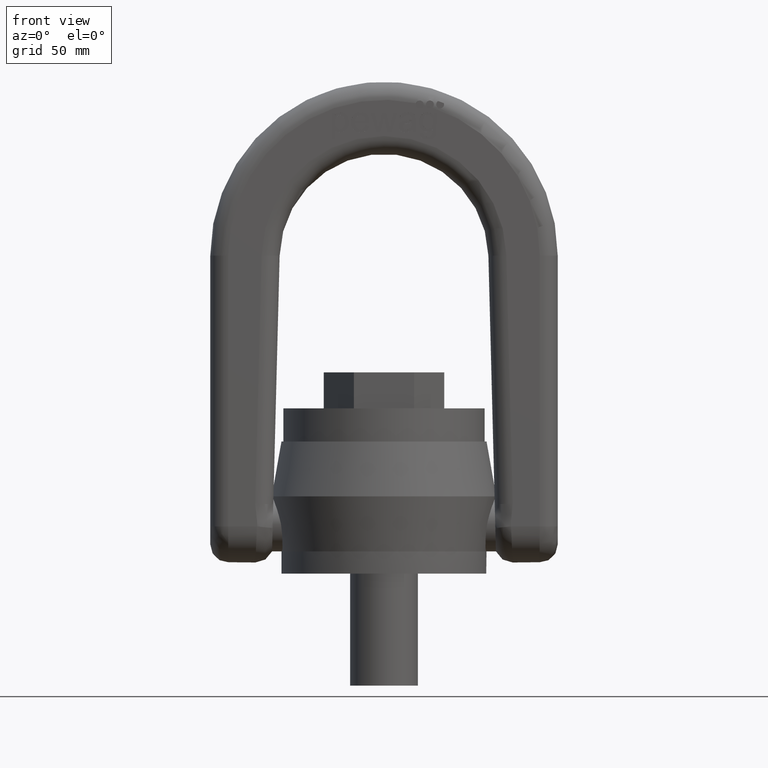
[diagram: clean part render]
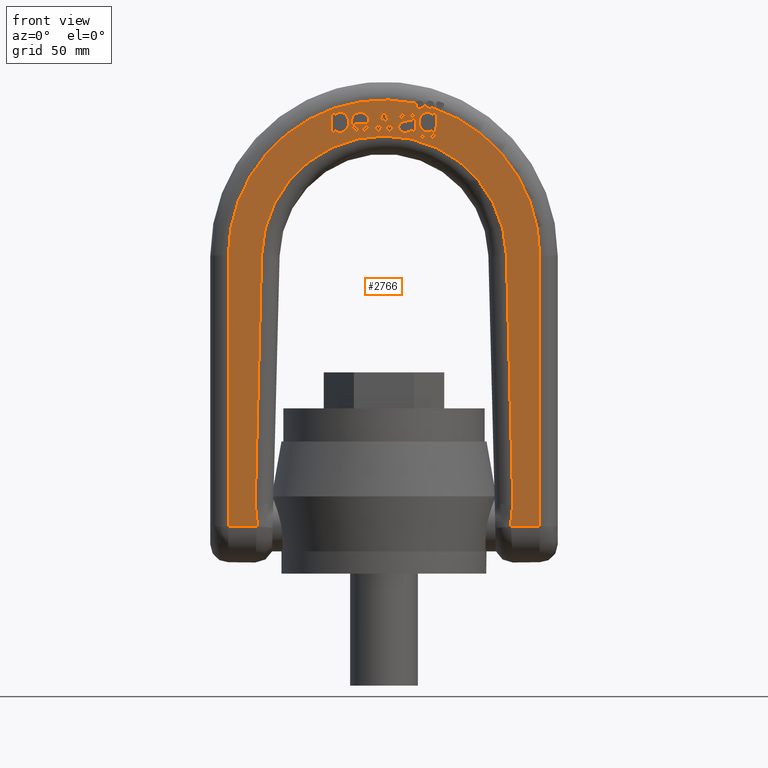
[diagram: same view with one face highlighted and labeled with its STEP entity id]
A machine part, front view. The second image highlights one B-rep face of the part: STEP entity #2766.
In plain terms, the highlighted planar face has unit normal (0, 1, 0).
Its self-contained STEP definition (entity closure, byte-faithful):
#321=B_SPLINE_CURVE_WITH_KNOTS('',3,(#6738,#6739,#6740,#6741),
 .UNSPECIFIED.,.F.,.F.,(4,4),(0.,1.),.UNSPECIFIED.);
#322=B_SPLINE_CURVE_WITH_KNOTS('',3,(#6746,#6747,#6748,#6749),
 .UNSPECIFIED.,.F.,.F.,(4,4),(0.,1.),.UNSPECIFIED.);
#323=B_SPLINE_CURVE_WITH_KNOTS('',3,(#6751,#6752,#6753,#6754,#6755,#6756,
#6757,#6758,#6759,#6760),.UNSPECIFIED.,.F.,.F.,(4,2,2,2,4),(0.,0.228358481914088,
0.466434346037289,0.703045305681468,1.),.UNSPECIFIED.);
#324=B_SPLINE_CURVE_WITH_KNOTS('',3,(#6762,#6763,#6764,#6765),
 .UNSPECIFIED.,.F.,.F.,(4,4),(0.,1.),.UNSPECIFIED.);
#325=B_SPLINE_CURVE_WITH_KNOTS('',3,(#6769,#6770,#6771,#6772),
 .UNSPECIFIED.,.F.,.F.,(4,4),(0.,1.),.UNSPECIFIED.);
#326=B_SPLINE_CURVE_WITH_KNOTS('',3,(#6774,#6775,#6776,#6777),
 .UNSPECIFIED.,.F.,.F.,(4,4),(0.,1.),.UNSPECIFIED.);
#327=B_SPLINE_CURVE_WITH_KNOTS('',3,(#6779,#6780,#6781,#6782),
 .UNSPECIFIED.,.F.,.F.,(4,4),(0.,1.),.UNSPECIFIED.);
#328=B_SPLINE_CURVE_WITH_KNOTS('',3,(#6784,#6785,#6786,#6787),
 .UNSPECIFIED.,.F.,.F.,(4,4),(0.,1.),.UNSPECIFIED.);
#329=B_SPLINE_CURVE_WITH_KNOTS('',3,(#6789,#6790,#6791,#6792,#6793,#6794),
 .UNSPECIFIED.,.F.,.F.,(4,2,4),(0.,0.559782608695653,1.),.UNSPECIFIED.);
#330=B_SPLINE_CURVE_WITH_KNOTS('',3,(#6796,#6797,#6798,#6799),
 .UNSPECIFIED.,.F.,.F.,(4,4),(0.,1.),.UNSPECIFIED.);
#331=B_SPLINE_CURVE_WITH_KNOTS('',3,(#6803,#6804,#6805,#6806),
 .UNSPECIFIED.,.F.,.F.,(4,4),(0.,1.),.UNSPECIFIED.);
#332=B_SPLINE_CURVE_WITH_KNOTS('',3,(#6808,#6809,#6810,#6811,#6812,#6813),
 .UNSPECIFIED.,.F.,.F.,(4,2,4),(0.,0.476123595505616,1.),.UNSPECIFIED.);
#333=B_SPLINE_CURVE_WITH_KNOTS('',3,(#6815,#6816,#6817,#6818),
 .UNSPECIFIED.,.F.,.F.,(4,4),(0.,1.),.UNSPECIFIED.);
#334=B_SPLINE_CURVE_WITH_KNOTS('',3,(#6820,#6821,#6822,#6823,#6824,#6825,
#6826,#6827),.UNSPECIFIED.,.F.,.F.,(4,2,2,4),(0.,0.472355769230783,0.73076923076924,
1.),.UNSPECIFIED.);
#335=B_SPLINE_CURVE_WITH_KNOTS('',3,(#6831,#6832,#6833,#6834),
 .UNSPECIFIED.,.F.,.F.,(4,4),(0.,1.),.UNSPECIFIED.);
#336=B_SPLINE_CURVE_WITH_KNOTS('',3,(#6836,#6837,#6838,#6839),
 .UNSPECIFIED.,.F.,.F.,(4,4),(0.,1.),.UNSPECIFIED.);
#337=B_SPLINE_CURVE_WITH_KNOTS('',3,(#6841,#6842,#6843,#6844,#6845,#6846,
#6847,#6848,#6849,#6850),.UNSPECIFIED.,.F.,.F.,(4,2,2,2,4),(0.,0.230139294836349,
0.49207415014351,0.75400900545067,1.),.UNSPECIFIED.);
#338=B_SPLINE_CURVE_WITH_KNOTS('',3,(#6863,#6864,#6865,#6866,#6867,#6868),
 .UNSPECIFIED.,.F.,.F.,(4,2,4),(0.,0.5,1.),.UNSPECIFIED.);
#339=B_SPLINE_CURVE_WITH_KNOTS('',3,(#6876,#6877,#6878,#6879,#6880,#6881),
 .UNSPECIFIED.,.F.,.F.,(4,2,4),(0.,0.5,1.),.UNSPECIFIED.);
#340=B_SPLINE_CURVE_WITH_KNOTS('',3,(#6898,#6899,#6900,#6901,#6902,#6903),
 .UNSPECIFIED.,.F.,.F.,(4,2,4),(0.,0.329498767460971,1.),.UNSPECIFIED.);
#341=B_SPLINE_CURVE_WITH_KNOTS('',3,(#6905,#6906,#6907,#6908,#6909,#6910,
#6911,#6912),.UNSPECIFIED.,.F.,.F.,(4,2,2,4),(0.,0.361028692437349,0.681441656975499,
1.),.UNSPECIFIED.);
#342=B_SPLINE_CURVE_WITH_KNOTS('',3,(#6914,#6915,#6916,#6917),
 .UNSPECIFIED.,.F.,.F.,(4,4),(0.,1.),.UNSPECIFIED.);
#343=B_SPLINE_CURVE_WITH_KNOTS('',3,(#6921,#6922,#6923,#6924),
 .UNSPECIFIED.,.F.,.F.,(4,4),(0.,1.),.UNSPECIFIED.);
#344=B_SPLINE_CURVE_WITH_KNOTS('',3,(#6926,#6927,#6928,#6929,#6930,#6931),
 .UNSPECIFIED.,.F.,.F.,(4,2,4),(0.,0.555803571428571,1.),.UNSPECIFIED.);
#345=B_SPLINE_CURVE_WITH_KNOTS('',3,(#6933,#6934,#6935,#6936,#6937,#6938),
 .UNSPECIFIED.,.F.,.F.,(4,2,4),(0.,0.500000000000013,1.),.UNSPECIFIED.);
#346=B_SPLINE_CURVE_WITH_KNOTS('',3,(#6940,#6941,#6942,#6943,#6944,#6945,
#6946,#6947,#6948,#6949,#6950,#6951,#6952,#6953),.UNSPECIFIED.,.F.,.F.,
(4,2,2,2,2,2,4),(0.,0.152201346045986,0.327187324733586,0.50217330342119,
0.676318003365108,0.850462703309026,1.),.UNSPECIFIED.);
#347=B_SPLINE_CURVE_WITH_KNOTS('',3,(#6958,#6959,#6960,#6961),
 .UNSPECIFIED.,.F.,.F.,(4,4),(0.,1.),.UNSPECIFIED.);
#348=B_SPLINE_CURVE_WITH_KNOTS('',3,(#6966,#6967,#6968,#6969),
 .UNSPECIFIED.,.F.,.F.,(4,4),(0.,1.),.UNSPECIFIED.);
#349=B_SPLINE_CURVE_WITH_KNOTS('',3,(#6971,#6972,#6973,#6974,#6975,#6976),
 .UNSPECIFIED.,.F.,.F.,(4,2,4),(0.,0.434679334916864,1.),.UNSPECIFIED.);
#350=B_SPLINE_CURVE_WITH_KNOTS('',3,(#6978,#6979,#6980,#6981),
 .UNSPECIFIED.,.F.,.F.,(4,4),(0.,1.),.UNSPECIFIED.);
#351=B_SPLINE_CURVE_WITH_KNOTS('',3,(#6985,#6986,#6987,#6988),
 .UNSPECIFIED.,.F.,.F.,(4,4),(0.,1.),.UNSPECIFIED.);
#352=B_SPLINE_CURVE_WITH_KNOTS('',3,(#6990,#6991,#6992,#6993,#6994,#6995),
 .UNSPECIFIED.,.F.,.F.,(4,2,4),(0.,0.570469798657718,1.),.UNSPECIFIED.);
#353=B_SPLINE_CURVE_WITH_KNOTS('',3,(#6997,#6998,#6999,#7000,#7001,#7002,
#7003,#7004,#7005,#7006,#7007,#7008),.UNSPECIFIED.,.F.,.F.,(4,2,2,2,2,4),
(0.,0.122570626594234,0.245141253188468,0.495637533752412,0.74613381431636,
1.),.UNSPECIFIED.);
#354=B_SPLINE_CURVE_WITH_KNOTS('',3,(#7018,#7019,#7020,#7021),
 .UNSPECIFIED.,.F.,.F.,(4,4),(0.,1.),.UNSPECIFIED.);
#355=B_SPLINE_CURVE_WITH_KNOTS('',3,(#7023,#7024,#7025,#7026),
 .UNSPECIFIED.,.F.,.F.,(4,4),(0.,1.),.UNSPECIFIED.);
#356=B_SPLINE_CURVE_WITH_KNOTS('',3,(#7048,#7049,#7050,#7051),
 .UNSPECIFIED.,.F.,.F.,(4,4),(0.,1.),.UNSPECIFIED.);
#1793=LINE('',#6698,#2075);
#1796=LINE('',#6734,#2078);
#1797=LINE('',#6744,#2079);
#1798=LINE('',#6767,#2080);
#1799=LINE('',#6801,#2081);
#1800=LINE('',#6828,#2082);
#1801=LINE('',#6852,#2083);
#1802=LINE('',#6854,#2084);
#1803=LINE('',#6856,#2085);
#1804=LINE('',#6858,#2086);
#1805=LINE('',#6860,#2087);
#1806=LINE('',#6862,#2088);
#1807=LINE('',#6870,#2089);
#1808=LINE('',#6874,#2090);
#1809=LINE('',#6882,#2091);
#1810=LINE('',#6894,#2092);
#1811=LINE('',#6895,#2093);
#1812=LINE('',#6919,#2094);
#1813=LINE('',#6955,#2095);
#1814=LINE('',#6957,#2096);
#1815=LINE('',#6964,#2097);
#1816=LINE('',#6983,#2098);
#1817=LINE('',#7009,#2099);
#1818=LINE('',#7012,#2100);
#1819=LINE('',#7014,#2101);
#1820=LINE('',#7016,#2102);
#1821=LINE('',#7028,#2103);
#1822=LINE('',#7030,#2104);
#1823=LINE('',#7032,#2105);
#1824=LINE('',#7034,#2106);
#1825=LINE('',#7036,#2107);
#1826=LINE('',#7038,#2108);
#1827=LINE('',#7040,#2109);
#1828=LINE('',#7042,#2110);
#1829=LINE('',#7044,#2111);
#1830=LINE('',#7046,#2112);
#1831=LINE('',#7053,#2113);
#1832=LINE('',#7055,#2114);
#2075=VECTOR('',#5912,1.);
#2078=VECTOR('',#5919,1.);
#2079=VECTOR('',#5924,1.);
#2080=VECTOR('',#5925,1.);
#2081=VECTOR('',#5926,1.);
#2082=VECTOR('',#5927,1.);
#2083=VECTOR('',#5928,1.);
#2084=VECTOR('',#5929,1.);
#2085=VECTOR('',#5930,1.);
#2086=VECTOR('',#5931,1.);
#2087=VECTOR('',#5932,1.);
#2088=VECTOR('',#5933,1.);
#2089=VECTOR('',#5934,1.);
#2090=VECTOR('',#5937,1.);
#2091=VECTOR('',#5938,1.);
#2092=VECTOR('',#5949,1.);
#2093=VECTOR('',#5950,1.);
#2094=VECTOR('',#5951,1.);
#2095=VECTOR('',#5952,1.);
#2096=VECTOR('',#5953,1.);
#2097=VECTOR('',#5954,1.);
#2098=VECTOR('',#5955,1.);
#2099=VECTOR('',#5956,1.);
#2100=VECTOR('',#5957,1.);
#2101=VECTOR('',#5958,1.);
#2102=VECTOR('',#5959,1.);
#2103=VECTOR('',#5960,1.);
#2104=VECTOR('',#5961,1.);
#2105=VECTOR('',#5962,1.);
#2106=VECTOR('',#5963,1.);
#2107=VECTOR('',#5964,1.);
#2108=VECTOR('',#5965,1.);
#2109=VECTOR('',#5966,1.);
#2110=VECTOR('',#5967,1.);
#2111=VECTOR('',#5968,1.);
#2112=VECTOR('',#5969,1.);
#2113=VECTOR('',#5970,1.);
#2114=VECTOR('',#5971,1.);
#2645=PLANE('',#5647);
#2766=ADVANCED_FACE('',(#3021,#3022,#3023,#3024,#3025,#3026),#2645,.F.);
#3021=FACE_BOUND('',#3097,.T.);
#3022=FACE_BOUND('',#3098,.T.);
#3023=FACE_BOUND('',#3099,.T.);
#3024=FACE_BOUND('',#3100,.T.);
#3025=FACE_BOUND('',#3101,.T.);
#3026=FACE_BOUND('',#3102,.T.);
#3097=EDGE_LOOP('',(#3433,#3434,#3435,#3436,#3437,#3438,#3439,#3440,#3441,
#3442,#3443,#3444,#3445,#3446,#3447,#3448,#3449));
#3098=EDGE_LOOP('',(#3450,#3451,#3452,#3453,#3454,#3455,#3456,#3457,#3458,
#3459));
#3099=EDGE_LOOP('',(#3460,#3461,#3462,#3463,#3464,#3465,#3466,#3467,#3468,
#3469,#3470,#3471,#3472,#3473));
#3100=EDGE_LOOP('',(#3474,#3475,#3476,#3477,#3478,#3479,#3480,#3481,#3482,
#3483,#3484));
#3101=EDGE_LOOP('',(#3485,#3486,#3487,#3488,#3489,#3490,#3491,#3492,#3493));
#3102=EDGE_LOOP('',(#3494,#3495,#3496,#3497,#3498,#3499,#3500,#3501,#3502,
#3503,#3504,#3505,#3506,#3507,#3508,#3509,#3510,#3511,#3512));
#3433=ORIENTED_EDGE('',*,*,#4997,.F.);
#3434=ORIENTED_EDGE('',*,*,#4998,.F.);
#3435=ORIENTED_EDGE('',*,*,#4999,.F.);
#3436=ORIENTED_EDGE('',*,*,#5000,.F.);
#3437=ORIENTED_EDGE('',*,*,#5001,.F.);
#3438=ORIENTED_EDGE('',*,*,#5002,.F.);
#3439=ORIENTED_EDGE('',*,*,#5003,.F.);
#3440=ORIENTED_EDGE('',*,*,#5004,.F.);
#3441=ORIENTED_EDGE('',*,*,#5005,.F.);
#3442=ORIENTED_EDGE('',*,*,#5006,.F.);
#3443=ORIENTED_EDGE('',*,*,#5007,.F.);
#3444=ORIENTED_EDGE('',*,*,#5008,.F.);
#3445=ORIENTED_EDGE('',*,*,#5009,.F.);
#3446=ORIENTED_EDGE('',*,*,#5010,.F.);
#3447=ORIENTED_EDGE('',*,*,#5011,.F.);
#3448=ORIENTED_EDGE('',*,*,#5012,.F.);
#3449=ORIENTED_EDGE('',*,*,#5013,.F.);
#3450=ORIENTED_EDGE('',*,*,#5014,.F.);
#3451=ORIENTED_EDGE('',*,*,#5015,.F.);
#3452=ORIENTED_EDGE('',*,*,#5016,.F.);
#3453=ORIENTED_EDGE('',*,*,#5017,.F.);
#3454=ORIENTED_EDGE('',*,*,#5018,.F.);
#3455=ORIENTED_EDGE('',*,*,#5019,.F.);
#3456=ORIENTED_EDGE('',*,*,#5020,.F.);
#3457=ORIENTED_EDGE('',*,*,#5021,.F.);
#3458=ORIENTED_EDGE('',*,*,#5022,.F.);
#3459=ORIENTED_EDGE('',*,*,#5023,.F.);
#3460=ORIENTED_EDGE('',*,*,#4995,.T.);
#3461=ORIENTED_EDGE('',*,*,#5024,.T.);
#3462=ORIENTED_EDGE('',*,*,#5025,.T.);
#3463=ORIENTED_EDGE('',*,*,#5026,.T.);
#3464=ORIENTED_EDGE('',*,*,#5027,.T.);
#3465=ORIENTED_EDGE('',*,*,#5028,.T.);
#3466=ORIENTED_EDGE('',*,*,#4989,.T.);
#3467=ORIENTED_EDGE('',*,*,#5029,.T.);
#3468=ORIENTED_EDGE('',*,*,#5030,.T.);
#3469=ORIENTED_EDGE('',*,*,#5031,.F.);
#3470=ORIENTED_EDGE('',*,*,#5032,.T.);
#3471=ORIENTED_EDGE('',*,*,#5033,.F.);
#3472=ORIENTED_EDGE('',*,*,#5034,.T.);
#3473=ORIENTED_EDGE('',*,*,#5035,.T.);
#3474=ORIENTED_EDGE('',*,*,#5036,.F.);
#3475=ORIENTED_EDGE('',*,*,#5037,.F.);
#3476=ORIENTED_EDGE('',*,*,#5038,.F.);
#3477=ORIENTED_EDGE('',*,*,#5039,.F.);
#3478=ORIENTED_EDGE('',*,*,#5040,.F.);
#3479=ORIENTED_EDGE('',*,*,#5041,.F.);
#3480=ORIENTED_EDGE('',*,*,#5042,.F.);
#3481=ORIENTED_EDGE('',*,*,#5043,.F.);
#3482=ORIENTED_EDGE('',*,*,#5044,.F.);
#3483=ORIENTED_EDGE('',*,*,#5045,.F.);
#3484=ORIENTED_EDGE('',*,*,#5046,.F.);
#3485=ORIENTED_EDGE('',*,*,#5047,.F.);
#3486=ORIENTED_EDGE('',*,*,#5048,.F.);
#3487=ORIENTED_EDGE('',*,*,#5049,.F.);
#3488=ORIENTED_EDGE('',*,*,#5050,.F.);
#3489=ORIENTED_EDGE('',*,*,#5051,.F.);
#3490=ORIENTED_EDGE('',*,*,#5052,.F.);
#3491=ORIENTED_EDGE('',*,*,#5053,.F.);
#3492=ORIENTED_EDGE('',*,*,#5054,.F.);
#3493=ORIENTED_EDGE('',*,*,#5055,.F.);
#3494=ORIENTED_EDGE('',*,*,#5056,.F.);
#3495=ORIENTED_EDGE('',*,*,#5057,.F.);
#3496=ORIENTED_EDGE('',*,*,#5058,.F.);
#3497=ORIENTED_EDGE('',*,*,#5059,.F.);
#3498=ORIENTED_EDGE('',*,*,#5060,.F.);
#3499=ORIENTED_EDGE('',*,*,#5061,.F.);
#3500=ORIENTED_EDGE('',*,*,#5062,.F.);
#3501=ORIENTED_EDGE('',*,*,#5063,.F.);
#3502=ORIENTED_EDGE('',*,*,#5064,.F.);
#3503=ORIENTED_EDGE('',*,*,#5065,.F.);
#3504=ORIENTED_EDGE('',*,*,#5066,.F.);
#3505=ORIENTED_EDGE('',*,*,#5067,.F.);
#3506=ORIENTED_EDGE('',*,*,#5068,.F.);
#3507=ORIENTED_EDGE('',*,*,#5069,.F.);
#3508=ORIENTED_EDGE('',*,*,#5070,.F.);
#3509=ORIENTED_EDGE('',*,*,#5071,.F.);
#3510=ORIENTED_EDGE('',*,*,#5072,.F.);
#3511=ORIENTED_EDGE('',*,*,#5073,.F.);
#3512=ORIENTED_EDGE('',*,*,#5074,.F.);
#4577=VERTEX_POINT('',#6699);
#4578=VERTEX_POINT('',#6700);
#4583=VERTEX_POINT('',#6733);
#4584=VERTEX_POINT('',#6735);
#4585=VERTEX_POINT('',#6742);
#4586=VERTEX_POINT('',#6743);
#4587=VERTEX_POINT('',#6745);
#4588=VERTEX_POINT('',#6750);
#4589=VERTEX_POINT('',#6761);
#4590=VERTEX_POINT('',#6766);
#4591=VERTEX_POINT('',#6768);
#4592=VERTEX_POINT('',#6773);
#4593=VERTEX_POINT('',#6778);
#4594=VERTEX_POINT('',#6783);
#4595=VERTEX_POINT('',#6788);
#4596=VERTEX_POINT('',#6795);
#4597=VERTEX_POINT('',#6800);
#4598=VERTEX_POINT('',#6802);
#4599=VERTEX_POINT('',#6807);
#4600=VERTEX_POINT('',#6814);
#4601=VERTEX_POINT('',#6819);
#4602=VERTEX_POINT('',#6829);
#4603=VERTEX_POINT('',#6830);
#4604=VERTEX_POINT('',#6835);
#4605=VERTEX_POINT('',#6840);
#4606=VERTEX_POINT('',#6851);
#4607=VERTEX_POINT('',#6853);
#4608=VERTEX_POINT('',#6855);
#4609=VERTEX_POINT('',#6857);
#4610=VERTEX_POINT('',#6859);
#4611=VERTEX_POINT('',#6861);
#4612=VERTEX_POINT('',#6869);
#4613=VERTEX_POINT('',#6871);
#4614=VERTEX_POINT('',#6873);
#4615=VERTEX_POINT('',#6875);
#4616=VERTEX_POINT('',#6883);
#4617=VERTEX_POINT('',#6885);
#4618=VERTEX_POINT('',#6887);
#4619=VERTEX_POINT('',#6889);
#4620=VERTEX_POINT('',#6891);
#4621=VERTEX_POINT('',#6893);
#4622=VERTEX_POINT('',#6896);
#4623=VERTEX_POINT('',#6897);
#4624=VERTEX_POINT('',#6904);
#4625=VERTEX_POINT('',#6913);
#4626=VERTEX_POINT('',#6918);
#4627=VERTEX_POINT('',#6920);
#4628=VERTEX_POINT('',#6925);
#4629=VERTEX_POINT('',#6932);
#4630=VERTEX_POINT('',#6939);
#4631=VERTEX_POINT('',#6954);
#4632=VERTEX_POINT('',#6956);
#4633=VERTEX_POINT('',#6962);
#4634=VERTEX_POINT('',#6963);
#4635=VERTEX_POINT('',#6965);
#4636=VERTEX_POINT('',#6970);
#4637=VERTEX_POINT('',#6977);
#4638=VERTEX_POINT('',#6982);
#4639=VERTEX_POINT('',#6984);
#4640=VERTEX_POINT('',#6989);
#4641=VERTEX_POINT('',#6996);
#4642=VERTEX_POINT('',#7010);
#4643=VERTEX_POINT('',#7011);
#4644=VERTEX_POINT('',#7013);
#4645=VERTEX_POINT('',#7015);
#4646=VERTEX_POINT('',#7017);
#4647=VERTEX_POINT('',#7022);
#4648=VERTEX_POINT('',#7027);
#4649=VERTEX_POINT('',#7029);
#4650=VERTEX_POINT('',#7031);
#4651=VERTEX_POINT('',#7033);
#4652=VERTEX_POINT('',#7035);
#4653=VERTEX_POINT('',#7037);
#4654=VERTEX_POINT('',#7039);
#4655=VERTEX_POINT('',#7041);
#4656=VERTEX_POINT('',#7043);
#4657=VERTEX_POINT('',#7045);
#4658=VERTEX_POINT('',#7047);
#4659=VERTEX_POINT('',#7052);
#4660=VERTEX_POINT('',#7054);
#4989=EDGE_CURVE('',#4577,#4578,#1793,.T.);
#4995=EDGE_CURVE('',#4584,#4583,#1796,.T.);
#4997=EDGE_CURVE('',#4585,#4586,#321,.T.);
#4998=EDGE_CURVE('',#4587,#4585,#1797,.T.);
#4999=EDGE_CURVE('',#4588,#4587,#322,.T.);
#5000=EDGE_CURVE('',#4589,#4588,#323,.T.);
#5001=EDGE_CURVE('',#4590,#4589,#324,.T.);
#5002=EDGE_CURVE('',#4591,#4590,#1798,.T.);
#5003=EDGE_CURVE('',#4592,#4591,#325,.T.);
#5004=EDGE_CURVE('',#4593,#4592,#326,.T.);
#5005=EDGE_CURVE('',#4594,#4593,#327,.T.);
#5006=EDGE_CURVE('',#4595,#4594,#328,.T.);
#5007=EDGE_CURVE('',#4596,#4595,#329,.T.);
#5008=EDGE_CURVE('',#4597,#4596,#330,.T.);
#5009=EDGE_CURVE('',#4598,#4597,#1799,.T.);
#5010=EDGE_CURVE('',#4599,#4598,#331,.T.);
#5011=EDGE_CURVE('',#4600,#4599,#332,.T.);
#5012=EDGE_CURVE('',#4601,#4600,#333,.T.);
#5013=EDGE_CURVE('',#4586,#4601,#334,.T.);
#5014=EDGE_CURVE('',#4602,#4603,#1800,.T.);
#5015=EDGE_CURVE('',#4604,#4602,#335,.T.);
#5016=EDGE_CURVE('',#4605,#4604,#336,.T.);
#5017=EDGE_CURVE('',#4606,#4605,#337,.T.);
#5018=EDGE_CURVE('',#4607,#4606,#1801,.T.);
#5019=EDGE_CURVE('',#4608,#4607,#1802,.T.);
#5020=EDGE_CURVE('',#4609,#4608,#1803,.T.);
#5021=EDGE_CURVE('',#4610,#4609,#1804,.T.);
#5022=EDGE_CURVE('',#4611,#4610,#1805,.T.);
#5023=EDGE_CURVE('',#4603,#4611,#1806,.T.);
#5024=EDGE_CURVE('',#4583,#4612,#338,.T.);
#5025=EDGE_CURVE('',#4612,#4613,#1807,.T.);
#5026=EDGE_CURVE('',#4613,#4614,#5559,.T.);
#5027=EDGE_CURVE('',#4614,#4615,#1808,.T.);
#5028=EDGE_CURVE('',#4615,#4577,#339,.T.);
#5029=EDGE_CURVE('',#4578,#4616,#1809,.T.);
#5030=EDGE_CURVE('',#4616,#4617,#5560,.T.);
#5031=EDGE_CURVE('',#4618,#4617,#5561,.T.);
#5032=EDGE_CURVE('',#4618,#4619,#5562,.T.);
#5033=EDGE_CURVE('',#4620,#4619,#5563,.T.);
#5034=EDGE_CURVE('',#4620,#4621,#5564,.T.);
#5035=EDGE_CURVE('',#4621,#4584,#1810,.T.);
#5036=EDGE_CURVE('',#4622,#4623,#1811,.T.);
#5037=EDGE_CURVE('',#4624,#4622,#340,.T.);
#5038=EDGE_CURVE('',#4625,#4624,#341,.T.);
#5039=EDGE_CURVE('',#4626,#4625,#342,.T.);
#5040=EDGE_CURVE('',#4627,#4626,#1812,.T.);
#5041=EDGE_CURVE('',#4628,#4627,#343,.T.);
#5042=EDGE_CURVE('',#4629,#4628,#344,.T.);
#5043=EDGE_CURVE('',#4630,#4629,#345,.T.);
#5044=EDGE_CURVE('',#4631,#4630,#346,.T.);
#5045=EDGE_CURVE('',#4632,#4631,#1813,.T.);
#5046=EDGE_CURVE('',#4623,#4632,#1814,.T.);
#5047=EDGE_CURVE('',#4633,#4634,#347,.T.);
#5048=EDGE_CURVE('',#4635,#4633,#1815,.T.);
#5049=EDGE_CURVE('',#4636,#4635,#348,.T.);
#5050=EDGE_CURVE('',#4637,#4636,#349,.T.);
#5051=EDGE_CURVE('',#4638,#4637,#350,.T.);
#5052=EDGE_CURVE('',#4639,#4638,#1816,.T.);
#5053=EDGE_CURVE('',#4640,#4639,#351,.T.);
#5054=EDGE_CURVE('',#4641,#4640,#352,.T.);
#5055=EDGE_CURVE('',#4634,#4641,#353,.T.);
#5056=EDGE_CURVE('',#4642,#4643,#1817,.T.);
#5057=EDGE_CURVE('',#4644,#4642,#1818,.T.);
#5058=EDGE_CURVE('',#4645,#4644,#1819,.T.);
#5059=EDGE_CURVE('',#4646,#4645,#1820,.T.);
#5060=EDGE_CURVE('',#4647,#4646,#354,.T.);
#5061=EDGE_CURVE('',#4648,#4647,#355,.T.);
#5062=EDGE_CURVE('',#4649,#4648,#1821,.T.);
#5063=EDGE_CURVE('',#4650,#4649,#1822,.T.);
#5064=EDGE_CURVE('',#4651,#4650,#1823,.T.);
#5065=EDGE_CURVE('',#4652,#4651,#1824,.T.);
#5066=EDGE_CURVE('',#4653,#4652,#1825,.T.);
#5067=EDGE_CURVE('',#4654,#4653,#1826,.T.);
#5068=EDGE_CURVE('',#4655,#4654,#1827,.T.);
#5069=EDGE_CURVE('',#4656,#4655,#1828,.T.);
#5070=EDGE_CURVE('',#4657,#4656,#1829,.T.);
#5071=EDGE_CURVE('',#4658,#4657,#1830,.T.);
#5072=EDGE_CURVE('',#4659,#4658,#356,.T.);
#5073=EDGE_CURVE('',#4660,#4659,#1831,.T.);
#5074=EDGE_CURVE('',#4643,#4660,#1832,.T.);
#5559=CIRCLE('',#5641,64.5);
#5560=CIRCLE('',#5642,82.);
#5561=CIRCLE('',#5643,2.0625);
#5562=CIRCLE('',#5644,82.);
#5563=CIRCLE('',#5645,2.0625);
#5564=CIRCLE('',#5646,82.);
#5641=AXIS2_PLACEMENT_3D('',#6872,#5935,#5936);
#5642=AXIS2_PLACEMENT_3D('',#6884,#5939,#5940);
#5643=AXIS2_PLACEMENT_3D('',#6886,#5941,#5942);
#5644=AXIS2_PLACEMENT_3D('',#6888,#5943,#5944);
#5645=AXIS2_PLACEMENT_3D('',#6890,#5945,#5946);
#5646=AXIS2_PLACEMENT_3D('',#6892,#5947,#5948);
#5647=AXIS2_PLACEMENT_3D('',#7056,#5972,#5973);
#5912=DIRECTION('',(1.,0.,-1.3717323703112E-15));
#5919=DIRECTION('',(1.,0.,-1.06168868475083E-15));
#5924=DIRECTION('',(1.,0.,0.));
#5925=DIRECTION('',(-0.989370262977938,0.,-0.14541830261341));
#5926=DIRECTION('',(0.991928985003783,0.,-0.126794671454938));
#5927=DIRECTION('',(-1.,0.,0.));
#5928=DIRECTION('',(1.,0.,0.));
#5929=DIRECTION('',(0.,0.,1.));
#5930=DIRECTION('',(1.,0.,0.));
#5931=DIRECTION('',(0.,0.,-1.));
#5932=DIRECTION('',(-1.,0.,0.));
#5933=DIRECTION('',(0.,0.,1.));
#5934=DIRECTION('',(0.0255100308212767,0.,0.999674566210173));
#5935=DIRECTION('',(0.,1.,0.));
#5936=DIRECTION('',(0.,0.,1.));
#5937=DIRECTION('',(0.0255100308212767,0.,-0.999674566210173));
#5938=DIRECTION('',(-4.29254185209232E-16,0.,1.));
#5939=DIRECTION('',(0.,-1.,0.));
#5940=DIRECTION('',(0.,0.,1.));
#5941=DIRECTION('',(0.,-1.,0.));
#5942=DIRECTION('',(0.,0.,0.999999999999997));
#5943=DIRECTION('',(0.,-1.,0.));
#5944=DIRECTION('',(0.,0.,1.));
#5945=DIRECTION('',(0.,-1.,0.));
#5946=DIRECTION('',(0.,0.,0.999999999999997));
#5947=DIRECTION('',(0.,-1.,0.));
#5948=DIRECTION('',(0.,0.,1.));
#5949=DIRECTION('',(-4.29254185209232E-16,0.,-1.));
#5950=DIRECTION('',(-1.,0.,0.));
#5951=DIRECTION('',(-0.988666662925712,0.,0.150127377980621));
#5952=DIRECTION('',(-1.,0.,0.));
#5953=DIRECTION('',(0.,0.,-1.));
#5954=DIRECTION('',(1.,0.,0.));
#5955=DIRECTION('',(-0.992687288142561,0.,0.12071432375724));
#5956=DIRECTION('',(-1.,0.,0.));
#5957=DIRECTION('',(0.304245570453574,0.,0.952593634693923));
#5958=DIRECTION('',(1.,0.,0.));
#5959=DIRECTION('',(0.259135455314436,0.,-0.965840988879112));
#5960=DIRECTION('',(1.,0.,0.));
#5961=DIRECTION('',(0.254367653151694,0.,0.967107593305988));
#5962=DIRECTION('',(1.,0.,0.));
#5963=DIRECTION('',(0.298320908470944,0.,-0.954465628280595));
#5964=DIRECTION('',(-1.,0.,0.));
#5965=DIRECTION('',(-0.269463722620019,0.,0.963010541059526));
#5966=DIRECTION('',(-0.247736970080356,0.,-0.968827329122896));
#5967=DIRECTION('',(-0.266059563516177,0.,-0.96395659065208));
#5968=DIRECTION('',(-1.,0.,0.));
#5969=DIRECTION('',(-0.253070161005812,0.,0.96744792811215));
#5970=DIRECTION('',(-1.,0.,0.));
#5971=DIRECTION('',(-0.287282618696351,0.,-0.957845862858408));
#5972=DIRECTION('',(0.,1.,0.));
#5973=DIRECTION('',(0.,0.,1.));
#6698=CARTESIAN_POINT('',(-1.93620024069426E-13,-19.,24.85));
#6699=CARTESIAN_POINT('',(66.9010799481762,-19.,24.8499999999999));
#6700=CARTESIAN_POINT('',(82.,-19.,24.8499999999999));
#6733=CARTESIAN_POINT('',(-66.9010799481761,-19.,24.8500000000001));
#6734=CARTESIAN_POINT('',(-1.4985735785258E-13,-19.,24.85));
#6735=CARTESIAN_POINT('',(-82.,-19.,24.8500000000001));
#6738=CARTESIAN_POINT('',(17.1170365068003,-19.,232.666666666667));
#6739=CARTESIAN_POINT('',(16.8557623478884,-19.,233.116909695574));
#6740=CARTESIAN_POINT('',(16.6982820329277,-19.,233.577705295472));
#6741=CARTESIAN_POINT('',(16.6445955619184,-19.,234.04905346636));
#6742=CARTESIAN_POINT('',(17.1170365068003,-19.,232.666666666667));
#6743=CARTESIAN_POINT('',(16.6445955619184,-19.,234.04905346636));
#6744=CARTESIAN_POINT('',(0.,-19.,232.666666666667));
#6745=CARTESIAN_POINT('',(15.3131710808876,-19.,232.666666666667));
#6746=CARTESIAN_POINT('',(14.9588403722262,-19.,233.894282425173));
#6747=CARTESIAN_POINT('',(15.0268432355047,-19.,233.387759017652));
#6748=CARTESIAN_POINT('',(15.1449534717252,-19.,232.979726272704));
#6749=CARTESIAN_POINT('',(15.3131710808876,-19.,232.666666666667));
#6750=CARTESIAN_POINT('',(14.9588403722262,-19.,233.894282425173));
#6751=CARTESIAN_POINT('',(8.66320687186832,-19.,237.341455615247));
#6752=CARTESIAN_POINT('',(8.06907659269866,-19.,236.806792018419));
#6753=CARTESIAN_POINT('',(7.77201145311384,-19.,236.127909951394));
#6754=CARTESIAN_POINT('',(7.77201145311384,-19.,234.439498592991));
#6755=CARTESIAN_POINT('',(8.07981388690053,-19.,233.746546431312));
#6756=CARTESIAN_POINT('',(9.31437191763629,-19.,232.694535883271));
#6757=CARTESIAN_POINT('',(10.1592698639943,-19.,232.430992581223));
#6758=CARTESIAN_POINT('',(12.5644237652112,-19.,232.430992581223));
#6759=CARTESIAN_POINT('',(13.8063707945598,-19.,232.919928370427));
#6760=CARTESIAN_POINT('',(14.9588403722262,-19.,233.894282425173));
#6761=CARTESIAN_POINT('',(8.66320687186832,-19.,237.341455615247));
#6762=CARTESIAN_POINT('',(11.7627057981389,-19.,238.407265285239));
#6763=CARTESIAN_POINT('',(10.2916964924839,-19.,238.231389102072));
#6764=CARTESIAN_POINT('',(9.26091624910525,-19.,237.876119212075));
#6765=CARTESIAN_POINT('',(8.66320687186832,-19.,237.341455615247));
#6766=CARTESIAN_POINT('',(11.7627057981389,-19.,238.407265285239));
#6767=CARTESIAN_POINT('',(-10.1686776272023,-19.,235.183775888987));
#6768=CARTESIAN_POINT('',(13.3661417322835,-19.,238.642939370683));
#6769=CARTESIAN_POINT('',(14.844309234073,-19.,238.98765668969));
#6770=CARTESIAN_POINT('',(14.4541875447388,-19.,238.85047326682));
#6771=CARTESIAN_POINT('',(13.9638511095204,-19.,238.73439498593));
#6772=CARTESIAN_POINT('',(13.3661417322835,-19.,238.642939370683));
#6773=CARTESIAN_POINT('',(14.844309234073,-19.,238.98765668969));
#6774=CARTESIAN_POINT('',(14.7977809591983,-19.,240.060501407009));
#6775=CARTESIAN_POINT('',(14.8264137437366,-19.,239.852967510872));
#6776=CARTESIAN_POINT('',(14.844309234073,-19.,239.494180097212));
#6777=CARTESIAN_POINT('',(14.844309234073,-19.,238.98765668969));
#6778=CARTESIAN_POINT('',(14.7977809591983,-19.,240.060501407009));
#6779=CARTESIAN_POINT('',(14.5150322118826,-19.,240.714760808391));
#6780=CARTESIAN_POINT('',(14.668933428776,-19.,240.489639293937));
#6781=CARTESIAN_POINT('',(14.7655690765927,-19.,240.27155282681));
#6782=CARTESIAN_POINT('',(14.7977809591983,-19.,240.060501407009));
#6783=CARTESIAN_POINT('',(14.5150322118826,-19.,240.714760808391));
#6784=CARTESIAN_POINT('',(13.7670007158196,-19.,241.256459452545));
#6785=CARTESIAN_POINT('',(14.1105941302792,-19.,241.119276029675));
#6786=CARTESIAN_POINT('',(14.357551896922,-19.,240.939882322845));
#6787=CARTESIAN_POINT('',(14.5150322118826,-19.,240.714760808391));
#6788=CARTESIAN_POINT('',(13.7670007158196,-19.,241.256459452545));
#6789=CARTESIAN_POINT('',(10.6317108088762,-19.,241.059478127398));
#6790=CARTESIAN_POINT('',(11.0612025769506,-19.,241.330327449476));
#6791=CARTESIAN_POINT('',(11.6445955619184,-19.,241.463993348682));
#6792=CARTESIAN_POINT('',(12.9617036506801,-19.,241.463993348682));
#6793=CARTESIAN_POINT('',(13.4234073013601,-19.,241.397160399079));
#6794=CARTESIAN_POINT('',(13.7670007158196,-19.,241.256459452545));
#6795=CARTESIAN_POINT('',(10.6317108088762,-19.,241.059478127398));
#6796=CARTESIAN_POINT('',(9.74767358625629,-19.,239.561013046815));
#6797=CARTESIAN_POINT('',(9.90515390121692,-19.,240.29265796879));
#6798=CARTESIAN_POINT('',(10.2022190408017,-19.,240.792146328984));
#6799=CARTESIAN_POINT('',(10.6317108088762,-19.,241.059478127398));
#6800=CARTESIAN_POINT('',(9.74767358625629,-19.,239.561013046815));
#6801=CARTESIAN_POINT('',(9.40857722160543,-19.,239.604358500771));
#6802=CARTESIAN_POINT('',(8.06907659269866,-19.,239.775581990279));
#6803=CARTESIAN_POINT('',(9.48997852541162,-19.,242.072524942441));
#6804=CARTESIAN_POINT('',(8.72763063707948,-19.,241.562484011256));
#6805=CARTESIAN_POINT('',(8.25161059413031,-19.,240.795663852648));
#6806=CARTESIAN_POINT('',(8.06907659269866,-19.,239.775581990279));
#6807=CARTESIAN_POINT('',(9.48997852541162,-19.,242.072524942441));
#6808=CARTESIAN_POINT('',(15.3167501789549,-19.,242.311716551548));
#6809=CARTESIAN_POINT('',(14.7476735862563,-19.,242.666986441545));
#6810=CARTESIAN_POINT('',(13.8528990694345,-19.,242.842862624712));
#6811=CARTESIAN_POINT('',(11.3045812455262,-19.,242.842862624712));
#6812=CARTESIAN_POINT('',(10.2523264137438,-19.,242.586083397288));
#6813=CARTESIAN_POINT('',(9.48997852541162,-19.,242.072524942441));
#6814=CARTESIAN_POINT('',(15.3167501789549,-19.,242.311716551548));
#6815=CARTESIAN_POINT('',(16.36542591267,-19.,241.031337938092));
#6816=CARTESIAN_POINT('',(16.2365783822477,-19.,241.534343821949));
#6817=CARTESIAN_POINT('',(15.8858267716536,-19.,241.959964185214));
#6818=CARTESIAN_POINT('',(15.3167501789549,-19.,242.311716551548));
#6819=CARTESIAN_POINT('',(16.36542591267,-19.,241.031337938092));
#6820=CARTESIAN_POINT('',(16.6445955619184,-19.,234.04905346636));
#6821=CARTESIAN_POINT('',(16.5873299928418,-19.,234.520401637247));
#6822=CARTESIAN_POINT('',(16.5622763063708,-19.,235.449027884369));
#6823=CARTESIAN_POINT('',(16.5622763063708,-19.,237.587682271681));
#6824=CARTESIAN_POINT('',(16.5622763063708,-19.,238.343949859299));
#6825=CARTESIAN_POINT('',(16.5622763063708,-19.,239.888142747506));
#6826=CARTESIAN_POINT('',(16.4978525411597,-19.,240.531849577897));
#6827=CARTESIAN_POINT('',(16.36542591267,-19.,241.031337938092));
#6828=CARTESIAN_POINT('',(0.,-19.,241.333844973139));
#6829=CARTESIAN_POINT('',(-25.8965640658554,-19.,241.333844973139));
#6830=CARTESIAN_POINT('',(-25.9359341445955,-19.,241.333844973139));
#6831=CARTESIAN_POINT('',(-23.0046528274875,-19.,242.842862624712));
#6832=CARTESIAN_POINT('',(-24.2895490336435,-19.,242.842862624712));
#6833=CARTESIAN_POINT('',(-25.255905511811,-19.,242.339856740854));
#6834=CARTESIAN_POINT('',(-25.8965640658554,-19.,241.333844973139));
#6835=CARTESIAN_POINT('',(-23.0046528274875,-19.,242.842862624712));
#6836=CARTESIAN_POINT('',(-19.8550465282749,-19.,241.421783064722));
#6837=CARTESIAN_POINT('',(-20.6281317108089,-19.,242.367996930161));
#6838=CARTESIAN_POINT('',(-21.676807444524,-19.,242.842862624712));
#6839=CARTESIAN_POINT('',(-23.0046528274875,-19.,242.842862624712));
#6840=CARTESIAN_POINT('',(-19.8550465282749,-19.,241.421783064722));
#6841=CARTESIAN_POINT('',(-25.7355046528275,-19.,233.707853671016));
#6842=CARTESIAN_POINT('',(-25.0805297065139,-19.,232.856612944487));
#6843=CARTESIAN_POINT('',(-24.2072297780959,-19.,232.430992581223));
#6844=CARTESIAN_POINT('',(-21.8808160343593,-19.,232.430992581223));
#6845=CARTESIAN_POINT('',(-20.8321403006442,-19.,232.909375799437));
#6846=CARTESIAN_POINT('',(-19.1284896206156,-19.,234.815873624968));
#6847=CARTESIAN_POINT('',(-18.7025769506084,-19.,236.103287285751));
#6848=CARTESIAN_POINT('',(-18.7025769506084,-19.,239.240918393451));
#6849=CARTESIAN_POINT('',(-19.0855404438081,-19.,240.475569199284));
#6850=CARTESIAN_POINT('',(-19.8550465282749,-19.,241.421783064722));
#6851=CARTESIAN_POINT('',(-25.7355046528275,-19.,233.707853671016));
#6852=CARTESIAN_POINT('',(0.,-19.,233.707853671016));
#6853=CARTESIAN_POINT('',(-25.7820329277022,-19.,233.707853671016));
#6854=CARTESIAN_POINT('',(-25.7820329277022,-19.,166.));
#6855=CARTESIAN_POINT('',(-25.7820329277022,-19.,228.839600920952));
#6856=CARTESIAN_POINT('',(0.,-19.,228.839600920952));
#6857=CARTESIAN_POINT('',(-27.5,-19.,228.839600920952));
#6858=CARTESIAN_POINT('',(-27.5,-19.,166.));
#6859=CARTESIAN_POINT('',(-27.5,-19.,242.617741110258));
#6860=CARTESIAN_POINT('',(0.,-19.,242.617741110258));
#6861=CARTESIAN_POINT('',(-25.9359341445955,-19.,242.617741110258));
#6862=CARTESIAN_POINT('',(-25.9359341445955,-19.,166.));
#6863=CARTESIAN_POINT('',(-66.9010799481761,-19.,24.8500000000001));
#6864=CARTESIAN_POINT('',(-66.6957112807656,-19.,26.8510116753793));
#6865=CARTESIAN_POINT('',(-66.9183774232712,-19.,28.842554441726));
#6866=CARTESIAN_POINT('',(-67.5450696883727,-19.,32.8090886498801));
#6867=CARTESIAN_POINT('',(-67.8692276185282,-19.,34.7911942552425));
#6868=CARTESIAN_POINT('',(-67.8176174505286,-19.,36.8136681859261));
#6869=CARTESIAN_POINT('',(-67.8176174505286,-19.,36.8136681859261));
#6870=CARTESIAN_POINT('',(-64.4790095205561,-19.,167.645396987972));
#6871=CARTESIAN_POINT('',(-64.4790095205561,-19.,167.645396987972));
#6872=CARTESIAN_POINT('',(0.,-19.,166.));
#6873=CARTESIAN_POINT('',(64.4790095205561,-19.,167.645396987972));
#6874=CARTESIAN_POINT('',(64.4790095205561,-19.,167.645396987972));
#6875=CARTESIAN_POINT('',(67.8176174505286,-19.,36.8136681859262));
#6876=CARTESIAN_POINT('',(67.8176174505286,-19.,36.8136681859262));
#6877=CARTESIAN_POINT('',(67.8692276185281,-19.,34.7911942552425));
#6878=CARTESIAN_POINT('',(67.5450696883727,-19.,32.8090886498801));
#6879=CARTESIAN_POINT('',(66.9183774232712,-19.,28.8425544417259));
#6880=CARTESIAN_POINT('',(66.6957112807656,-19.,26.8510116753792));
#6881=CARTESIAN_POINT('',(66.9010799481762,-19.,24.85));
#6882=CARTESIAN_POINT('',(82.,-19.,166.));
#6883=CARTESIAN_POINT('',(82.,-19.,167.5));
#6884=CARTESIAN_POINT('',(0.,-19.,167.5));
#6885=CARTESIAN_POINT('',(25.4379855318607,-19.,245.454530927207));
#6886=CARTESIAN_POINT('',(24.1999999999999,-19.,247.104166666667));
#6887=CARTESIAN_POINT('',(22.2533422268389,-19.,246.422675827263));
#6888=CARTESIAN_POINT('',(0.,-19.,167.5));
#6889=CARTESIAN_POINT('',(20.8771234007435,-19.,246.797829216884));
#6890=CARTESIAN_POINT('',(18.8375,-19.,247.104166666667));
#6891=CARTESIAN_POINT('',(16.8768992395193,-19.,247.744440754853));
#6892=CARTESIAN_POINT('',(0.,-19.,167.5));
#6893=CARTESIAN_POINT('',(-82.,-19.,167.5));
#6894=CARTESIAN_POINT('',(-82.,-19.,166.));
#6895=CARTESIAN_POINT('',(0.,-19.,242.617741110258));
#6896=CARTESIAN_POINT('',(27.5,-19.,242.617741110258));
#6897=CARTESIAN_POINT('',(25.9144595561919,-19.,242.617741110258));
#6898=CARTESIAN_POINT('',(27.0705082319256,-19.,230.841071885393));
#6899=CARTESIAN_POINT('',(27.3568360773085,-19.,231.541059094398));
#6900=CARTESIAN_POINT('',(27.5,-19.,232.5963161934));
#6901=CARTESIAN_POINT('',(27.5,-19.,236.877142491686));
#6902=CARTESIAN_POINT('',(27.5,-19.,239.747441800972));
#6903=CARTESIAN_POINT('',(27.5,-19.,242.617741110258));
#6904=CARTESIAN_POINT('',(27.0705082319256,-19.,230.841071885393));
#6905=CARTESIAN_POINT('',(20.055476020043,-19.,229.384817088769));
#6906=CARTESIAN_POINT('',(20.8178239083751,-19.,228.881811204912));
#6907=CARTESIAN_POINT('',(21.7734430923408,-19.,228.632067024815));
#6908=CARTESIAN_POINT('',(23.9352183249821,-19.,228.632067024815));
#6909=CARTESIAN_POINT('',(24.8085182534002,-19.,228.825530826298));
#6910=CARTESIAN_POINT('',(26.2717015547544,-19.,229.604161096314));
#6911=CARTESIAN_POINT('',(26.7841803865426,-19.,230.144602200051));
#6912=CARTESIAN_POINT('',(27.0705082319256,-19.,230.841071885393));
#6913=CARTESIAN_POINT('',(20.055476020043,-19.,229.384817088769));
#6914=CARTESIAN_POINT('',(18.9101646385111,-19.,231.840048605782));
#6915=CARTESIAN_POINT('',(18.9101646385111,-19.,230.703888462522));
#6916=CARTESIAN_POINT('',(19.2895490336435,-19.,229.884305448964));
#6917=CARTESIAN_POINT('',(20.055476020043,-19.,229.384817088769));
#6918=CARTESIAN_POINT('',(18.9101646385111,-19.,231.840048605782));
#6919=CARTESIAN_POINT('',(10.198572328637,-19.,233.162889316975));
#6920=CARTESIAN_POINT('',(20.5780243378669,-19.,231.586786902021));
#6921=CARTESIAN_POINT('',(21.2508947745168,-19.,230.404898951138));
#6922=CARTESIAN_POINT('',(20.8679312813171,-19.,230.668713225889));
#6923=CARTESIAN_POINT('',(20.642448103078,-19.,231.062675876183));
#6924=CARTESIAN_POINT('',(20.5780243378669,-19.,231.586786902021));
#6925=CARTESIAN_POINT('',(21.2508947745168,-19.,230.404898951138));
#6926=CARTESIAN_POINT('',(24.8550465282749,-19.,230.545599897672));
#6927=CARTESIAN_POINT('',(24.4398711524696,-19.,230.190330007675));
#6928=CARTESIAN_POINT('',(23.7884753042234,-19.,230.010936300844));
#6929=CARTESIAN_POINT('',(22.1850393700788,-19.,230.010936300844));
#6930=CARTESIAN_POINT('',(21.6374373657838,-19.,230.144602200051));
#6931=CARTESIAN_POINT('',(21.2508947745168,-19.,230.404898951138));
#6932=CARTESIAN_POINT('',(24.8550465282749,-19.,230.545599897672));
#6933=CARTESIAN_POINT('',(25.7534001431639,-19.,233.971667945766));
#6934=CARTESIAN_POINT('',(25.7534001431639,-19.,233.071181887951));
#6935=CARTESIAN_POINT('',(25.7068718682892,-19.,232.364159631619));
#6936=CARTESIAN_POINT('',(25.5207587687903,-19.,231.337042721924));
#6937=CARTESIAN_POINT('',(25.2666428060129,-19.,230.904387311333));
#6938=CARTESIAN_POINT('',(24.8550465282749,-19.,230.545599897672));
#6939=CARTESIAN_POINT('',(25.7534001431639,-19.,233.971667945766));
#6940=CARTESIAN_POINT('',(25.8750894774517,-19.,241.425300588386));
#6941=CARTESIAN_POINT('',(25.1234788833214,-19.,242.371514453824));
#6942=CARTESIAN_POINT('',(24.1499642090193,-19.,242.842862624712));
#6943=CARTESIAN_POINT('',(21.5801717967072,-19.,242.842862624712));
#6944=CARTESIAN_POINT('',(20.5064423765211,-19.,242.353926835508));
#6945=CARTESIAN_POINT('',(18.9531138153185,-19.,240.405218726017));
#6946=CARTESIAN_POINT('',(18.5665712240516,-19.,239.184638014838));
#6947=CARTESIAN_POINT('',(18.5665712240516,-19.,236.265093374264));
#6948=CARTESIAN_POINT('',(18.9638511095204,-19.,235.058582757739));
#6949=CARTESIAN_POINT('',(20.5601288475304,-19.,233.145049884881));
#6950=CARTESIAN_POINT('',(21.6195418754474,-19.,232.666666666667));
#6951=CARTESIAN_POINT('',(24.0676449534717,-19.,232.666666666667));
#6952=CARTESIAN_POINT('',(25.0089477451682,-19.,233.099322077258));
#6953=CARTESIAN_POINT('',(25.7534001431639,-19.,233.971667945766));
#6954=CARTESIAN_POINT('',(25.8750894774517,-19.,241.425300588386));
#6955=CARTESIAN_POINT('',(0.,-19.,241.425300588386));
#6956=CARTESIAN_POINT('',(25.9144595561919,-19.,241.425300588386));
#6957=CARTESIAN_POINT('',(25.9144595561919,-19.,166.));
#6958=CARTESIAN_POINT('',(-7.85075161059411,-19.,237.214824763367));
#6959=CARTESIAN_POINT('',(-7.85075161059411,-19.,238.79771041187));
#6960=CARTESIAN_POINT('',(-8.09055118110234,-19.,239.972563315426));
#6961=CARTESIAN_POINT('',(-8.56657122405152,-19.,240.735865950371));
#6962=CARTESIAN_POINT('',(-7.85075161059411,-19.,237.214824763367));
#6963=CARTESIAN_POINT('',(-8.56657122405152,-19.,240.735865950371));
#6964=CARTESIAN_POINT('',(0.,-19.,237.214824763367));
#6965=CARTESIAN_POINT('',(-15.4384395132426,-19.,237.214824763367));
#6966=CARTESIAN_POINT('',(-14.4792412312097,-19.,234.692760296751));
#6967=CARTESIAN_POINT('',(-15.0483178239084,-19.,235.273151701202));
#6968=CARTESIAN_POINT('',(-15.3668575518969,-19.,236.113839856741));
#6969=CARTESIAN_POINT('',(-15.4384395132426,-19.,237.214824763367));
#6970=CARTESIAN_POINT('',(-14.4792412312097,-19.,234.692760296751));
#6971=CARTESIAN_POINT('',(-10.6961345740873,-19.,234.330455359427));
#6972=CARTESIAN_POINT('',(-11.1399427344309,-19.,233.989255564083));
#6973=CARTESIAN_POINT('',(-11.6911238367931,-19.,233.820414428243));
#6974=CARTESIAN_POINT('',(-13.197924123121,-19.,233.820414428243));
#6975=CARTESIAN_POINT('',(-13.9101646385111,-19.,234.108851368636));
#6976=CARTESIAN_POINT('',(-14.4792412312097,-19.,234.692760296751));
#6977=CARTESIAN_POINT('',(-10.6961345740873,-19.,234.330455359427));
#6978=CARTESIAN_POINT('',(-9.67251252684321,-19.,235.874648247634));
#6979=CARTESIAN_POINT('',(-9.90873299928416,-19.,235.185213609619));
#6980=CARTESIAN_POINT('',(-10.2487473156764,-19.,234.671655154771));
#6981=CARTESIAN_POINT('',(-10.6961345740873,-19.,234.330455359427));
#6982=CARTESIAN_POINT('',(-9.67251252684321,-19.,235.874648247634));
#6983=CARTESIAN_POINT('',(8.23224178127617,-19.,233.697366102329));
#6984=CARTESIAN_POINT('',(-7.9080171796707,-19.,235.66007930417));
#6985=CARTESIAN_POINT('',(-9.482820329277,-19.,233.268163213098));
#6986=CARTESIAN_POINT('',(-8.72047244094486,-19.,233.823931951906));
#6987=CARTESIAN_POINT('',(-8.19434502505367,-19.,234.618892299821));
#6988=CARTESIAN_POINT('',(-7.9080171796707,-19.,235.66007930417));
#6989=CARTESIAN_POINT('',(-9.482820329277,-19.,233.268163213098));
#6990=CARTESIAN_POINT('',(-15.9108804581245,-19.,233.806344333589));
#6991=CARTESIAN_POINT('',(-15.0554760200429,-19.,232.888270657457));
#6992=CARTESIAN_POINT('',(-13.8672154617036,-19.,232.430992581223));
#6993=CARTESIAN_POINT('',(-11.2007874015748,-19.,232.430992581223));
#6994=CARTESIAN_POINT('',(-10.2451682176091,-19.,232.708876950627));
#6995=CARTESIAN_POINT('',(-9.482820329277,-19.,233.268163213098));
#6996=CARTESIAN_POINT('',(-15.9108804581245,-19.,233.806344333589));
#6997=CARTESIAN_POINT('',(-8.56657122405152,-19.,240.735865950371));
#6998=CARTESIAN_POINT('',(-9.0425912670007,-19.,241.502686108979));
#6999=CARTESIAN_POINT('',(-9.62598425196848,-19.,242.044384753134));
#7000=CARTESIAN_POINT('',(-10.9931997136721,-19.,242.684574059862));
#7001=CARTESIAN_POINT('',(-11.7054402290623,-19.,242.842862624712));
#7002=CARTESIAN_POINT('',(-13.9495347172512,-19.,242.842862624712));
#7003=CARTESIAN_POINT('',(-15.1198997852541,-19.,242.353926835508));
#7004=CARTESIAN_POINT('',(-16.7806012884753,-19.,240.405218726017));
#7005=CARTESIAN_POINT('',(-17.1957766642806,-19.,239.131875159887));
#7006=CARTESIAN_POINT('',(-17.1957766642806,-19.,235.973138910207));
#7007=CARTESIAN_POINT('',(-16.7662848962061,-19.,234.720900486058));
#7008=CARTESIAN_POINT('',(-15.9108804581245,-19.,233.806344333589));
#7009=CARTESIAN_POINT('',(0.,-19.,242.617741110258));
#7010=CARTESIAN_POINT('',(6.92018611309952,-19.,242.617741110258));
#7011=CARTESIAN_POINT('',(5.2415891195419,-19.,242.617741110258));
#7012=CARTESIAN_POINT('',(-15.9259205911035,-19.,171.086524430531));
#7013=CARTESIAN_POINT('',(3.74194702934863,-19.,232.666666666667));
#7014=CARTESIAN_POINT('',(0.,-19.,232.666666666667));
#7015=CARTESIAN_POINT('',(1.95955619183968,-19.,232.666666666667));
#7016=CARTESIAN_POINT('',(18.5135459673514,-19.,170.96719047853));
#7017=CARTESIAN_POINT('',(0.356120257695082,-19.,238.642939370683));
#7018=CARTESIAN_POINT('',(0.155690765927007,-19.,239.448452289588));
#7019=CARTESIAN_POINT('',(0.280959198282054,-19.,238.910271169097));
#7020=CARTESIAN_POINT('',(0.34896206156051,-19.,238.63942184702));
#7021=CARTESIAN_POINT('',(0.356120257695082,-19.,238.642939370683));
#7022=CARTESIAN_POINT('',(0.155690765927007,-19.,239.448452289588));
#7023=CARTESIAN_POINT('',(-0.0340014316392044,-19.,240.327833205423));
#7024=CARTESIAN_POINT('',(-0.0340014316392044,-19.,240.278587874137));
#7025=CARTESIAN_POINT('',(0.0268432355046753,-19.,239.986633410079));
#7026=CARTESIAN_POINT('',(0.155690765927007,-19.,239.448452289588));
#7027=CARTESIAN_POINT('',(-0.0340014316392044,-19.,240.327833205423));
#7028=CARTESIAN_POINT('',(0.,-19.,240.327833205423));
#7029=CARTESIAN_POINT('',(-0.0733715103793639,-19.,240.327833205423));
#7030=CARTESIAN_POINT('',(-18.3533371958202,-19.,170.827276036623));
#7031=CARTESIAN_POINT('',(-2.08840372226197,-19.,232.666666666667));
#7032=CARTESIAN_POINT('',(0.,-19.,232.666666666667));
#7033=CARTESIAN_POINT('',(-3.88153185397278,-19.,232.666666666667));
#7034=CARTESIAN_POINT('',(15.446376710119,-19.,170.827808352877));
#7035=CARTESIAN_POINT('',(-6.99176807444522,-19.,242.617741110258));
#7036=CARTESIAN_POINT('',(0.,-19.,242.617741110258));
#7037=CARTESIAN_POINT('',(-5.20937723693627,-19.,242.617741110258));
#7038=CARTESIAN_POINT('',(15.0509076809447,-19.,170.211452979586));
#7039=CARTESIAN_POINT('',(-3.00465282748745,-19.,234.738488104374));
#7040=CARTESIAN_POINT('',(-19.3184697870858,-19.,170.939888696136));
#7041=CARTESIAN_POINT('',(-2.6610594130279,-19.,236.082182143771));
#7042=CARTESIAN_POINT('',(-20.446657287395,-19.,171.643437438992));
#7043=CARTESIAN_POINT('',(-0.857193987115225,-19.,242.617741110258));
#7044=CARTESIAN_POINT('',(0.,-19.,242.617741110258));
#7045=CARTESIAN_POINT('',(0.910880458124575,-19.,242.617741110258));
#7046=CARTESIAN_POINT('',(19.6110339085068,-19.,171.129958279409));
#7047=CARTESIAN_POINT('',(2.27451682176094,-19.,237.404771041187));
#7048=CARTESIAN_POINT('',(2.90443808160346,-19.,234.956574571502));
#7049=CARTESIAN_POINT('',(2.8650680028633,-19.,235.150038372985));
#7050=CARTESIAN_POINT('',(2.65748031496065,-19.,235.96610386288));
#7051=CARTESIAN_POINT('',(2.27451682176094,-19.,237.404771041187));
#7052=CARTESIAN_POINT('',(2.90443808160346,-19.,234.956574571502));
#7053=CARTESIAN_POINT('',(0.,-19.,234.956574571502));
#7054=CARTESIAN_POINT('',(2.94380816034361,-19.,234.956574571502));
#7055=CARTESIAN_POINT('',(-16.2740989580723,-19.,170.881020993969));
#7056=CARTESIAN_POINT('',(0.,-19.,166.));